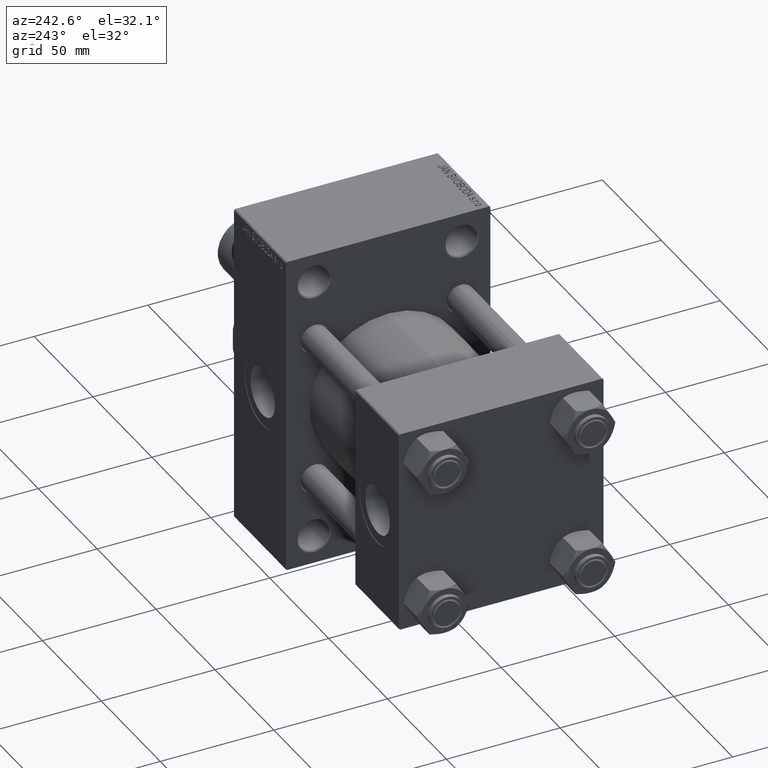
[diagram: clean part render]
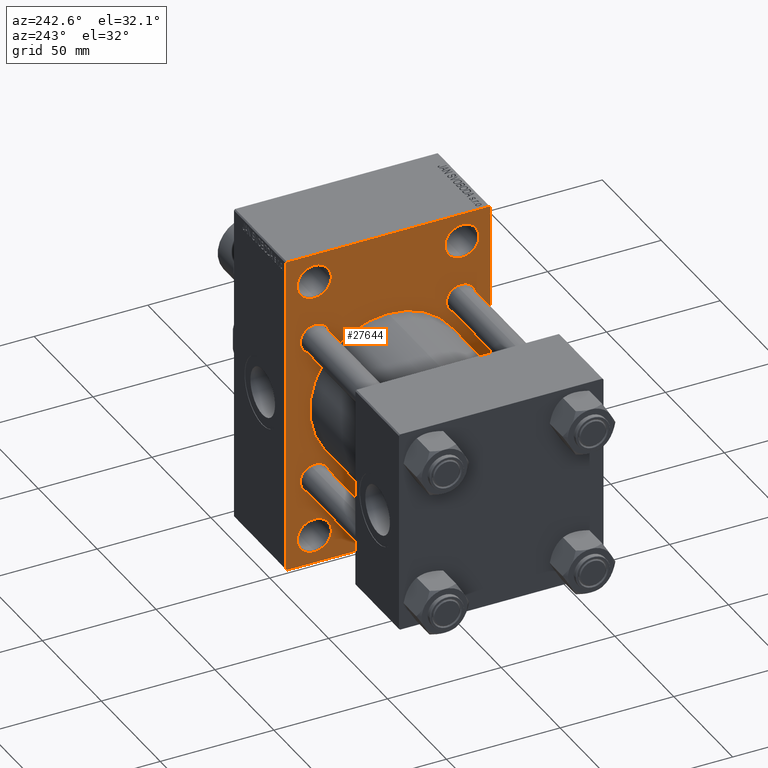
[diagram: same view with one face highlighted and labeled with its STEP entity id]
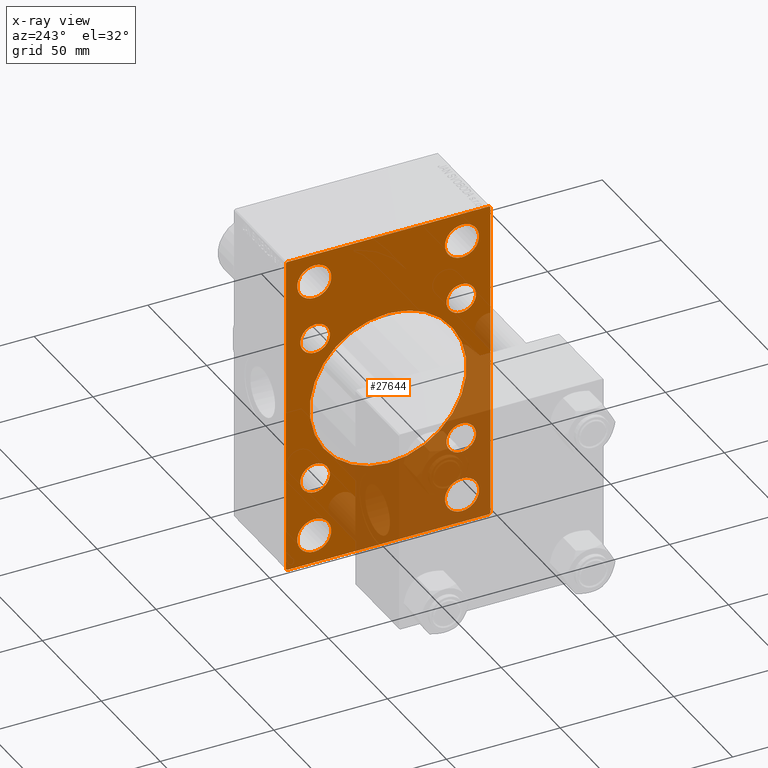
[diagram: x-ray of the same camera — body ghosted, the highlighted face saturated]
A machine part, auxiliary view. The second image highlights one B-rep face of the part: STEP entity #27644.
The next image is the same camera in x-ray: the body ghosted, the highlighted face saturated — about 36% of this face is hidden behind the body in this view.
In plain terms, the highlighted planar face has unit normal (-1, 0, 0).
Its self-contained STEP definition (entity closure, byte-faithful):
#30 = CARTESIAN_POINT ( 'NONE',  ( 96.00000000000000000, -32.50000000000000000, 58.50000000000000711 ) ) ;
#101 = EDGE_CURVE ( 'NONE', #42203, #6829, #30299, .T. ) ;
#272 = DIRECTION ( 'NONE',  ( 1.000000000000000000, -0.000000000000000000, 0.000000000000000000 ) ) ;
#279 = ORIENTED_EDGE ( 'NONE', *, *, #24883, .T. ) ;
#297 = DIRECTION ( 'NONE',  ( 1.000000000000000000, -0.000000000000000000, 0.000000000000000000 ) ) ;
#342 = CARTESIAN_POINT ( 'NONE',  ( 96.00000000000000000, -44.99999999999997158, 70.49999999999998579 ) ) ;
#911 = DIRECTION ( 'NONE',  ( 0.000000000000000000, -4.886545002751570165E-17, -1.000000000000000000 ) ) ;
#1038 = VERTEX_POINT ( 'NONE', #1784 ) ;
#1247 = CARTESIAN_POINT ( 'NONE',  ( 96.00000000000000000, -32.50000000000000000, -58.49999999999999289 ) ) ;
#1306 = EDGE_CURVE ( 'NONE', #12983, #25310, #2509, .T. ) ;
#1452 = ORIENTED_EDGE ( 'NONE', *, *, #16870, .T. ) ;
#1469 = VERTEX_POINT ( 'NONE', #8520 ) ;
#1582 = VERTEX_POINT ( 'NONE', #9703 ) ;
#1784 = CARTESIAN_POINT ( 'NONE',  ( 96.00000000000000000, -2.602085213965210642E-15, 34.50000000000000000 ) ) ;
#1814 = VECTOR ( 'NONE', #18403, 1000.000000000000000 ) ;
#1918 = AXIS2_PLACEMENT_3D ( 'NONE', #14043, #6090, #10430 ) ;
#2224 = VECTOR ( 'NONE', #17335, 1000.000000000000000 ) ;
#2266 = VECTOR ( 'NONE', #7074, 1000.000000000000114 ) ;
#2509 = LINE ( 'NONE', #31929, #40342 ) ;
#2779 = ORIENTED_EDGE ( 'NONE', *, *, #38191, .T. ) ;
#3109 = VERTEX_POINT ( 'NONE', #27136 ) ;
#3368 = VERTEX_POINT ( 'NONE', #44792 ) ;
#3402 = DIRECTION ( 'NONE',  ( 1.000000000000000000, 0.000000000000000000, 0.000000000000000000 ) ) ;
#3548 = CIRCLE ( 'NONE', #30496, 7.499999999999978684 ) ;
#3928 = AXIS2_PLACEMENT_3D ( 'NONE', #9842, #24541, #13697 ) ;
#3943 = AXIS2_PLACEMENT_3D ( 'NONE', #8341, #30737, #26416 ) ;
#4276 = CIRCLE ( 'NONE', #21218, 6.499999999999999112 ) ;
#4301 = LINE ( 'NONE', #19034, #27430 ) ;
#4566 = AXIS2_PLACEMENT_3D ( 'NONE', #41394, #33709, #40919 ) ;
#4595 = CARTESIAN_POINT ( 'NONE',  ( 96.00000000000000000, 32.14999999999999147, 25.65000000000000213 ) ) ;
#4627 = ORIENTED_EDGE ( 'NONE', *, *, #7603, .F. ) ;
#4939 = FACE_BOUND ( 'NONE', #39299, .T. ) ;
#5203 = ORIENTED_EDGE ( 'NONE', *, *, #43144, .T. ) ;
#5637 = EDGE_LOOP ( 'NONE', ( #27664, #9669 ) ) ;
#5860 = AXIS2_PLACEMENT_3D ( 'NONE', #29314, #44008, #25705 ) ;
#6052 = ORIENTED_EDGE ( 'NONE', *, *, #22944, .T. ) ;
#6090 = DIRECTION ( 'NONE',  ( 1.000000000000000000, -0.000000000000000000, 0.000000000000000000 ) ) ;
#6257 = VERTEX_POINT ( 'NONE', #46068 ) ;
#6377 = ORIENTED_EDGE ( 'NONE', *, *, #23702, .T. ) ;
#6603 = EDGE_CURVE ( 'NONE', #32255, #1038, #39750, .T. ) ;
#6661 = CARTESIAN_POINT ( 'NONE',  ( 96.00000000000000000, -32.50000000000000000, -58.49999999999999289 ) ) ;
#6829 = VERTEX_POINT ( 'NONE', #21810 ) ;
#7074 = DIRECTION ( 'NONE',  ( 0.000000000000000000, 0.7071067811865474617, -0.7071067811865474617 ) ) ;
#7285 = VERTEX_POINT ( 'NONE', #26070 ) ;
#7603 = EDGE_CURVE ( 'NONE', #3109, #25310, #7927, .T. ) ;
#7700 = DIRECTION ( 'NONE',  ( -0.000000000000000000, -0.7071067811865574537, -0.7071067811865376918 ) ) ;
#7927 = LINE ( 'NONE', #37561, #32089 ) ;
#8035 = DIRECTION ( 'NONE',  ( 0.000000000000000000, 0.000000000000000000, 1.000000000000000000 ) ) ;
#8147 = DIRECTION ( 'NONE',  ( 0.000000000000000000, 0.000000000000000000, 1.000000000000000000 ) ) ;
#8212 = AXIS2_PLACEMENT_3D ( 'NONE', #31527, #46219, #13211 ) ;
#8341 = CARTESIAN_POINT ( 'NONE',  ( 96.00000000000000000, 0.000000000000000000, 0.000000000000000000 ) ) ;
#8410 = DIRECTION ( 'NONE',  ( 0.000000000000000000, 0.000000000000000000, 1.000000000000000000 ) ) ;
#8520 = CARTESIAN_POINT ( 'NONE',  ( 96.00000000000000000, 32.50000000000000711, 65.99999999999998579 ) ) ;
#8540 = EDGE_CURVE ( 'NONE', #47420, #42127, #45192, .T. ) ;
#8562 = ORIENTED_EDGE ( 'NONE', *, *, #41721, .T. ) ;
#8729 = CARTESIAN_POINT ( 'NONE',  ( 96.00000000000000000, 32.50000000000000711, 51.00000000000002842 ) ) ;
#9029 = AXIS2_PLACEMENT_3D ( 'NONE', #30096, #22638, #11316 ) ;
#9669 = ORIENTED_EDGE ( 'NONE', *, *, #32951, .T. ) ;
#9703 = CARTESIAN_POINT ( 'NONE',  ( 96.00000000000000000, -32.14999999999997726, 25.65000000000000213 ) ) ;
#9842 = CARTESIAN_POINT ( 'NONE',  ( 96.00000000000000000, 32.50000000000000711, 58.50000000000000711 ) ) ;
#10017 = ORIENTED_EDGE ( 'NONE', *, *, #47500, .T. ) ;
#10430 = DIRECTION ( 'NONE',  ( 0.000000000000000000, 0.000000000000000000, 1.000000000000000000 ) ) ;
#11047 = CIRCLE ( 'NONE', #12575, 34.50000000000000000 ) ;
#11245 = CIRCLE ( 'NONE', #43570, 6.500000000000005329 ) ;
#11316 = DIRECTION ( 'NONE',  ( 0.000000000000000000, 0.000000000000000000, 1.000000000000000000 ) ) ;
#11642 = CIRCLE ( 'NONE', #3928, 7.499999999999978684 ) ;
#11691 = CARTESIAN_POINT ( 'NONE',  ( 96.00000000000000000, -44.99999999999997158, -70.50000000000000000 ) ) ;
#12022 = CARTESIAN_POINT ( 'NONE',  ( 96.00000000000000000, 32.50000000000000711, 58.50000000000000711 ) ) ;
#12367 = CARTESIAN_POINT ( 'NONE',  ( 96.00000000000000000, -32.14999999999997726, -25.65000000000000568 ) ) ;
#12575 = AXIS2_PLACEMENT_3D ( 'NONE', #29434, #3402, #33052 ) ;
#12769 = CARTESIAN_POINT ( 'NONE',  ( 96.00000000000000000, -32.14999999999997726, -32.15000000000001279 ) ) ;
#12983 = VERTEX_POINT ( 'NONE', #342 ) ;
#13211 = DIRECTION ( 'NONE',  ( 0.000000000000000000, 0.000000000000000000, 1.000000000000000000 ) ) ;
#13256 = CARTESIAN_POINT ( 'NONE',  ( 96.00000000000000000, 32.50000000000000711, -66.00000000000000000 ) ) ;
#13434 = VERTEX_POINT ( 'NONE', #8729 ) ;
#13568 = DIRECTION ( 'NONE',  ( 0.000000000000000000, 0.000000000000000000, -1.000000000000000000 ) ) ;
#13583 = ORIENTED_EDGE ( 'NONE', *, *, #8540, .T. ) ;
#13697 = DIRECTION ( 'NONE',  ( 0.000000000000000000, 0.000000000000000000, 1.000000000000000000 ) ) ;
#13811 = LINE ( 'NONE', #28506, #38102 ) ;
#13884 = CARTESIAN_POINT ( 'NONE',  ( 96.00000000000000000, 32.14999999999999147, 32.15000000000000568 ) ) ;
#14043 = CARTESIAN_POINT ( 'NONE',  ( 96.00000000000000000, 32.50000000000000711, -58.50000000000000000 ) ) ;
#14549 = CARTESIAN_POINT ( 'NONE',  ( 96.00000000000000000, 57.75000000000000000, 57.75000000000000000 ) ) ;
#14769 = ORIENTED_EDGE ( 'NONE', *, *, #21280, .T. ) ;
#14825 = DIRECTION ( 'NONE',  ( 1.000000000000000000, -0.000000000000000000, 0.000000000000000000 ) ) ;
#14923 = CARTESIAN_POINT ( 'NONE',  ( 96.00000000000000000, 57.74999999999938893, -57.75000000000100187 ) ) ;
#15013 = LINE ( 'NONE', #14549, #2266 ) ;
#15162 = LINE ( 'NONE', #14923, #19707 ) ;
#15164 = EDGE_LOOP ( 'NONE', ( #1452, #2779, #23093, #27830, #4627, #33927, #20683, #5203 ) ) ;
#15356 = CIRCLE ( 'NONE', #18432, 6.500000000000005329 ) ;
#15436 = CARTESIAN_POINT ( 'NONE',  ( 96.00000000000000000, 32.14999999999999147, -32.15000000000000568 ) ) ;
#15651 = VERTEX_POINT ( 'NONE', #22249 ) ;
#16560 = CARTESIAN_POINT ( 'NONE',  ( 96.00000000000000000, -44.49999999999995026, 70.99999999999998579 ) ) ;
#16791 = ORIENTED_EDGE ( 'NONE', *, *, #6603, .T. ) ;
#16870 = EDGE_CURVE ( 'NONE', #30762, #6257, #34690, .T. ) ;
#16908 = VERTEX_POINT ( 'NONE', #24570 ) ;
#17141 = CARTESIAN_POINT ( 'NONE',  ( 96.00000000000000000, 32.14999999999999147, -38.65000000000001279 ) ) ;
#17335 = DIRECTION ( 'NONE',  ( 0.000000000000000000, -1.000000000000000000, -1.541976423090495633E-16 ) ) ;
#17474 = EDGE_CURVE ( 'NONE', #1582, #15651, #15356, .T. ) ;
#17991 = ORIENTED_EDGE ( 'NONE', *, *, #17474, .T. ) ;
#18037 = DIRECTION ( 'NONE',  ( 0.000000000000000000, 0.000000000000000000, 1.000000000000000000 ) ) ;
#18403 = DIRECTION ( 'NONE',  ( 0.000000000000000000, -0.7071067811865573427, 0.7071067811865378028 ) ) ;
#18432 = AXIS2_PLACEMENT_3D ( 'NONE', #36342, #31594, #18037 ) ;
#18461 = VERTEX_POINT ( 'NONE', #20471 ) ;
#18591 = DIRECTION ( 'NONE',  ( 1.000000000000000000, -0.000000000000000000, 0.000000000000000000 ) ) ;
#18705 = CARTESIAN_POINT ( 'NONE',  ( 96.00000000000000000, 32.14999999999999147, -25.64999999999999858 ) ) ;
#18721 = FACE_BOUND ( 'NONE', #33486, .T. ) ;
#18725 = CIRCLE ( 'NONE', #45635, 7.499999999999985789 ) ;
#18854 = EDGE_CURVE ( 'NONE', #3109, #3368, #15013, .T. ) ;
#18961 = FACE_BOUND ( 'NONE', #37113, .T. ) ;
#19034 = CARTESIAN_POINT ( 'NONE',  ( 96.00000000000000000, 45.00000000000002132, 71.00000000000000000 ) ) ;
#19198 = DIRECTION ( 'NONE',  ( 0.000000000000000000, 0.000000000000000000, 1.000000000000000000 ) ) ;
#19341 = AXIS2_PLACEMENT_3D ( 'NONE', #12769, #27478, #23163 ) ;
#19707 = VECTOR ( 'NONE', #7700, 999.9999999999998863 ) ;
#20471 = CARTESIAN_POINT ( 'NONE',  ( 96.00000000000000000, -32.14999999999997726, -38.65000000000001990 ) ) ;
#20683 = ORIENTED_EDGE ( 'NONE', *, *, #47498, .T. ) ;
#20898 = DIRECTION ( 'NONE',  ( 0.000000000000000000, 0.000000000000000000, 1.000000000000000000 ) ) ;
#21150 = ORIENTED_EDGE ( 'NONE', *, *, #39125, .T. ) ;
#21218 = AXIS2_PLACEMENT_3D ( 'NONE', #13884, #14825, #29524 ) ;
#21280 = EDGE_CURVE ( 'NONE', #1469, #13434, #11642, .T. ) ;
#21810 = CARTESIAN_POINT ( 'NONE',  ( 96.00000000000000000, 32.50000000000000711, -50.99999999999999289 ) ) ;
#22249 = CARTESIAN_POINT ( 'NONE',  ( 96.00000000000000000, -32.14999999999997726, 38.65000000000002700 ) ) ;
#22569 = FACE_BOUND ( 'NONE', #26201, .T. ) ;
#22638 = DIRECTION ( 'NONE',  ( 1.000000000000000000, -0.000000000000000000, 0.000000000000000000 ) ) ;
#22676 = DIRECTION ( 'NONE',  ( 0.000000000000000000, 0.000000000000000000, 1.000000000000000000 ) ) ;
#22878 = CARTESIAN_POINT ( 'NONE',  ( 96.00000000000000000, 32.14999999999999147, 38.65000000000001279 ) ) ;
#22944 = EDGE_CURVE ( 'NONE', #30338, #29631, #18725, .T. ) ;
#23093 = ORIENTED_EDGE ( 'NONE', *, *, #40381, .F. ) ;
#23095 = AXIS2_PLACEMENT_3D ( 'NONE', #41104, #40869, #19198 ) ;
#23163 = DIRECTION ( 'NONE',  ( 0.000000000000000000, 0.000000000000000000, 1.000000000000000000 ) ) ;
#23639 = DIRECTION ( 'NONE',  ( 1.000000000000000000, -0.000000000000000000, 0.000000000000000000 ) ) ;
#23702 = EDGE_CURVE ( 'NONE', #15651, #1582, #35357, .T. ) ;
#23752 = ORIENTED_EDGE ( 'NONE', *, *, #28626, .T. ) ;
#24002 = AXIS2_PLACEMENT_3D ( 'NONE', #15436, #18591, #22676 ) ;
#24424 = VERTEX_POINT ( 'NONE', #12367 ) ;
#24541 = DIRECTION ( 'NONE',  ( 1.000000000000000000, -0.000000000000000000, 0.000000000000000000 ) ) ;
#24570 = CARTESIAN_POINT ( 'NONE',  ( 96.00000000000000000, -32.50000000000000000, 65.99999999999998579 ) ) ;
#24883 = EDGE_CURVE ( 'NONE', #18461, #24424, #30749, .T. ) ;
#25310 = VERTEX_POINT ( 'NONE', #16560 ) ;
#25526 = CIRCLE ( 'NONE', #29376, 7.499999999999978684 ) ;
#25705 = DIRECTION ( 'NONE',  ( 0.000000000000000000, 0.000000000000000000, -1.000000000000000000 ) ) ;
#25803 = CARTESIAN_POINT ( 'NONE',  ( 96.00000000000000000, -32.50000000000000000, -65.99999999999997158 ) ) ;
#26070 = CARTESIAN_POINT ( 'NONE',  ( 96.00000000000000000, 45.00000000000001421, -70.50000000000001421 ) ) ;
#26183 = FACE_BOUND ( 'NONE', #5637, .T. ) ;
#26201 = EDGE_LOOP ( 'NONE', ( #45356, #16791 ) ) ;
#26416 = DIRECTION ( 'NONE',  ( -0.000000000000000000, 0.000000000000000000, 1.000000000000000000 ) ) ;
#26466 = CARTESIAN_POINT ( 'NONE',  ( 96.00000000000000000, 32.50000000000000711, -58.50000000000000000 ) ) ;
#26735 = DIRECTION ( 'NONE',  ( 1.000000000000000000, -0.000000000000000000, 0.000000000000000000 ) ) ;
#27136 = CARTESIAN_POINT ( 'NONE',  ( 96.00000000000000000, 44.50000000000002132, 71.00000000000000000 ) ) ;
#27316 = ORIENTED_EDGE ( 'NONE', *, *, #44287, .T. ) ;
#27430 = VECTOR ( 'NONE', #911, 1000.000000000000000 ) ;
#27473 = EDGE_CURVE ( 'NONE', #24424, #18461, #34702, .T. ) ;
#27478 = DIRECTION ( 'NONE',  ( 1.000000000000000000, -0.000000000000000000, 0.000000000000000000 ) ) ;
#27644 = ADVANCED_FACE ( 'NONE', ( #37970, #4939, #37500, #45431, #18721, #40866, #26183, #18961, #22569, #33654 ), #34350, .T. ) ;
#27664 = ORIENTED_EDGE ( 'NONE', *, *, #42956, .T. ) ;
#27830 = ORIENTED_EDGE ( 'NONE', *, *, #1306, .T. ) ;
#28506 = CARTESIAN_POINT ( 'NONE',  ( 96.00000000000000000, -44.99999999999997158, 70.99999999999998579 ) ) ;
#28626 = EDGE_CURVE ( 'NONE', #45439, #16908, #25526, .T. ) ;
#28906 = CARTESIAN_POINT ( 'NONE',  ( 96.00000000000000000, -32.50000000000000000, 51.00000000000002842 ) ) ;
#28991 = CIRCLE ( 'NONE', #8212, 7.499999999999978684 ) ;
#29314 = CARTESIAN_POINT ( 'NONE',  ( 96.00000000000000000, -2.602085213965210642E-15, 0.000000000000000000 ) ) ;
#29376 = AXIS2_PLACEMENT_3D ( 'NONE', #30, #272, #40298 ) ;
#29434 = CARTESIAN_POINT ( 'NONE',  ( 96.00000000000000000, -2.602085213965210642E-15, 0.000000000000000000 ) ) ;
#29506 = EDGE_LOOP ( 'NONE', ( #13583, #8562 ) ) ;
#29524 = DIRECTION ( 'NONE',  ( 0.000000000000000000, 0.000000000000000000, 1.000000000000000000 ) ) ;
#29631 = VERTEX_POINT ( 'NONE', #25803 ) ;
#30096 = CARTESIAN_POINT ( 'NONE',  ( 96.00000000000000000, 32.14999999999999147, 32.15000000000000568 ) ) ;
#30299 = CIRCLE ( 'NONE', #43369, 7.500000000000007105 ) ;
#30338 = VERTEX_POINT ( 'NONE', #38184 ) ;
#30424 = LINE ( 'NONE', #45119, #1814 ) ;
#30496 = AXIS2_PLACEMENT_3D ( 'NONE', #12022, #26735, #8410 ) ;
#30631 = CARTESIAN_POINT ( 'NONE',  ( 96.00000000000000000, 32.14999999999999147, -32.15000000000000568 ) ) ;
#30737 = DIRECTION ( 'NONE',  ( -1.000000000000000000, 0.000000000000000000, -0.000000000000000000 ) ) ;
#30749 = CIRCLE ( 'NONE', #23095, 6.500000000000005329 ) ;
#30762 = VERTEX_POINT ( 'NONE', #33578 ) ;
#30926 = EDGE_LOOP ( 'NONE', ( #14769, #10017 ) ) ;
#31527 = CARTESIAN_POINT ( 'NONE',  ( 96.00000000000000000, -32.50000000000000000, 58.50000000000000711 ) ) ;
#31594 = DIRECTION ( 'NONE',  ( 1.000000000000000000, -0.000000000000000000, 0.000000000000000000 ) ) ;
#31833 = ORIENTED_EDGE ( 'NONE', *, *, #27473, .T. ) ;
#31929 = CARTESIAN_POINT ( 'NONE',  ( 96.00000000000000000, -57.75000000000028422, 57.74999999999948841 ) ) ;
#32089 = VECTOR ( 'NONE', #47691, 1000.000000000000000 ) ;
#32255 = VERTEX_POINT ( 'NONE', #39496 ) ;
#32580 = CIRCLE ( 'NONE', #24002, 6.500000000000005329 ) ;
#32820 = ORIENTED_EDGE ( 'NONE', *, *, #40424, .T. ) ;
#32951 = EDGE_CURVE ( 'NONE', #37169, #38740, #32580, .T. ) ;
#33052 = DIRECTION ( 'NONE',  ( 0.000000000000000000, 0.000000000000000000, -1.000000000000000000 ) ) ;
#33486 = EDGE_LOOP ( 'NONE', ( #6377, #17991 ) ) ;
#33496 = CIRCLE ( 'NONE', #1918, 7.500000000000007105 ) ;
#33578 = CARTESIAN_POINT ( 'NONE',  ( 96.00000000000000000, 44.50000000000004263, -70.99999999999998579 ) ) ;
#33654 = FACE_OUTER_BOUND ( 'NONE', #15164, .T. ) ;
#33709 = DIRECTION ( 'NONE',  ( 1.000000000000000000, -0.000000000000000000, 0.000000000000000000 ) ) ;
#33869 = EDGE_LOOP ( 'NONE', ( #27316, #23752 ) ) ;
#33927 = ORIENTED_EDGE ( 'NONE', *, *, #18854, .T. ) ;
#34013 = DIRECTION ( 'NONE',  ( 0.000000000000000000, 0.000000000000000000, 1.000000000000000000 ) ) ;
#34350 = PLANE ( 'NONE',  #3943 ) ;
#34397 = VERTEX_POINT ( 'NONE', #11691 ) ;
#34690 = LINE ( 'NONE', #38304, #2224 ) ;
#34702 = CIRCLE ( 'NONE', #19341, 6.500000000000005329 ) ;
#35357 = CIRCLE ( 'NONE', #4566, 6.500000000000005329 ) ;
#36342 = CARTESIAN_POINT ( 'NONE',  ( 96.00000000000000000, -32.14999999999997726, 32.15000000000001279 ) ) ;
#36433 = EDGE_CURVE ( 'NONE', #1038, #32255, #11047, .T. ) ;
#37113 = EDGE_LOOP ( 'NONE', ( #31833, #279 ) ) ;
#37169 = VERTEX_POINT ( 'NONE', #17141 ) ;
#37500 = FACE_BOUND ( 'NONE', #39694, .T. ) ;
#37561 = CARTESIAN_POINT ( 'NONE',  ( 96.00000000000000000, 45.00000000000002132, 71.00000000000000000 ) ) ;
#37970 = FACE_BOUND ( 'NONE', #33869, .T. ) ;
#38102 = VECTOR ( 'NONE', #13568, 1000.000000000000000 ) ;
#38184 = CARTESIAN_POINT ( 'NONE',  ( 96.00000000000000000, -32.50000000000000000, -51.00000000000000711 ) ) ;
#38191 = EDGE_CURVE ( 'NONE', #6257, #34397, #30424, .T. ) ;
#38304 = CARTESIAN_POINT ( 'NONE',  ( 96.00000000000000000, 45.00000000000001421, -70.99999999999998579 ) ) ;
#38740 = VERTEX_POINT ( 'NONE', #18705 ) ;
#38785 = CIRCLE ( 'NONE', #47258, 7.499999999999985789 ) ;
#39125 = EDGE_CURVE ( 'NONE', #29631, #30338, #38785, .T. ) ;
#39299 = EDGE_LOOP ( 'NONE', ( #6052, #21150 ) ) ;
#39496 = CARTESIAN_POINT ( 'NONE',  ( 96.00000000000000000, 1.622946243093158675E-15, -34.50000000000000000 ) ) ;
#39694 = EDGE_LOOP ( 'NONE', ( #32820, #46056 ) ) ;
#39750 = CIRCLE ( 'NONE', #5860, 34.50000000000000000 ) ;
#40298 = DIRECTION ( 'NONE',  ( 0.000000000000000000, 0.000000000000000000, 1.000000000000000000 ) ) ;
#40342 = VECTOR ( 'NONE', #47572, 1000.000000000000000 ) ;
#40381 = EDGE_CURVE ( 'NONE', #12983, #34397, #13811, .T. ) ;
#40424 = EDGE_CURVE ( 'NONE', #6829, #42203, #33496, .T. ) ;
#40866 = FACE_BOUND ( 'NONE', #29506, .T. ) ;
#40869 = DIRECTION ( 'NONE',  ( 1.000000000000000000, -0.000000000000000000, 0.000000000000000000 ) ) ;
#40919 = DIRECTION ( 'NONE',  ( 0.000000000000000000, 0.000000000000000000, 1.000000000000000000 ) ) ;
#41104 = CARTESIAN_POINT ( 'NONE',  ( 96.00000000000000000, -32.14999999999997726, -32.15000000000001279 ) ) ;
#41143 = DIRECTION ( 'NONE',  ( 1.000000000000000000, -0.000000000000000000, 0.000000000000000000 ) ) ;
#41394 = CARTESIAN_POINT ( 'NONE',  ( 96.00000000000000000, -32.14999999999997726, 32.15000000000001279 ) ) ;
#41721 = EDGE_CURVE ( 'NONE', #42127, #47420, #4276, .T. ) ;
#42127 = VERTEX_POINT ( 'NONE', #4595 ) ;
#42203 = VERTEX_POINT ( 'NONE', #13256 ) ;
#42956 = EDGE_CURVE ( 'NONE', #38740, #37169, #11245, .T. ) ;
#43144 = EDGE_CURVE ( 'NONE', #7285, #30762, #15162, .T. ) ;
#43369 = AXIS2_PLACEMENT_3D ( 'NONE', #26466, #41143, #8147 ) ;
#43570 = AXIS2_PLACEMENT_3D ( 'NONE', #30631, #23639, #34013 ) ;
#44008 = DIRECTION ( 'NONE',  ( 1.000000000000000000, 0.000000000000000000, 0.000000000000000000 ) ) ;
#44287 = EDGE_CURVE ( 'NONE', #16908, #45439, #28991, .T. ) ;
#44792 = CARTESIAN_POINT ( 'NONE',  ( 96.00000000000000000, 45.00000000000002132, 70.50000000000000000 ) ) ;
#45119 = CARTESIAN_POINT ( 'NONE',  ( 96.00000000000000000, -57.74999999999937472, -57.75000000000096634 ) ) ;
#45192 = CIRCLE ( 'NONE', #9029, 6.499999999999999112 ) ;
#45356 = ORIENTED_EDGE ( 'NONE', *, *, #36433, .T. ) ;
#45431 = FACE_BOUND ( 'NONE', #30926, .T. ) ;
#45439 = VERTEX_POINT ( 'NONE', #28906 ) ;
#45635 = AXIS2_PLACEMENT_3D ( 'NONE', #6661, #47384, #20898 ) ;
#46056 = ORIENTED_EDGE ( 'NONE', *, *, #101, .T. ) ;
#46068 = CARTESIAN_POINT ( 'NONE',  ( 96.00000000000000000, -44.49999999999994316, -71.00000000000000000 ) ) ;
#46219 = DIRECTION ( 'NONE',  ( 1.000000000000000000, -0.000000000000000000, 0.000000000000000000 ) ) ;
#47258 = AXIS2_PLACEMENT_3D ( 'NONE', #1247, #297, #8035 ) ;
#47384 = DIRECTION ( 'NONE',  ( 1.000000000000000000, -0.000000000000000000, 0.000000000000000000 ) ) ;
#47420 = VERTEX_POINT ( 'NONE', #22878 ) ;
#47498 = EDGE_CURVE ( 'NONE', #3368, #7285, #4301, .T. ) ;
#47500 = EDGE_CURVE ( 'NONE', #13434, #1469, #3548, .T. ) ;
#47572 = DIRECTION ( 'NONE',  ( -0.000000000000000000, 0.7071067811865426878, 0.7071067811865524577 ) ) ;
#47691 = DIRECTION ( 'NONE',  ( 0.000000000000000000, -1.000000000000000000, -1.541976423090495387E-16 ) ) ;